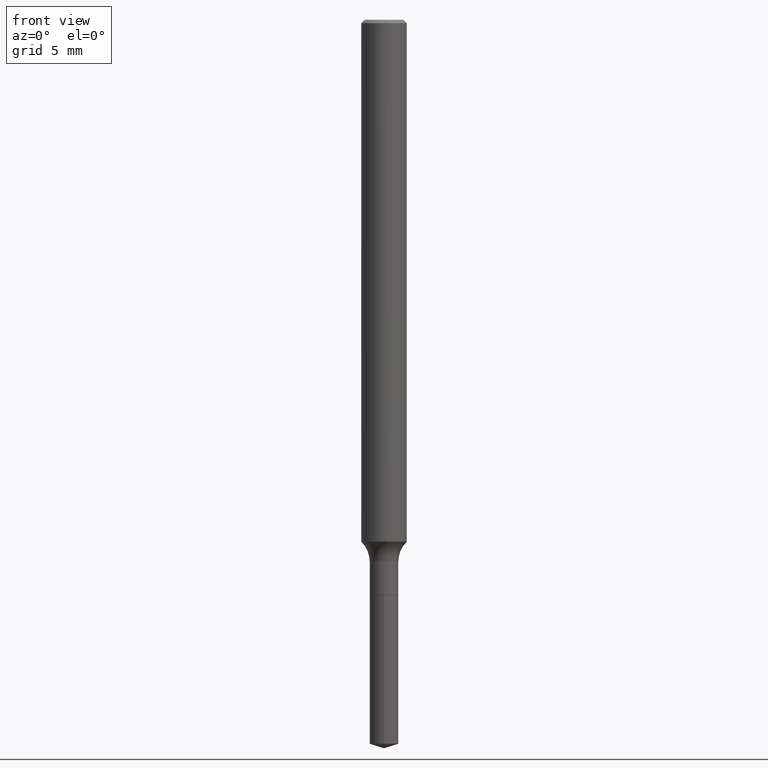
[diagram: clean part render]
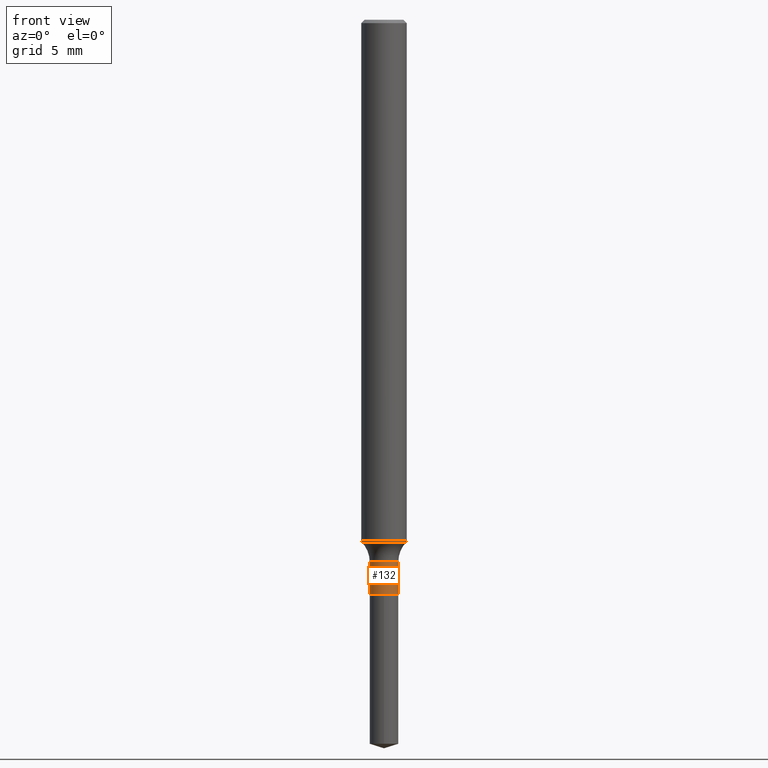
[diagram: same view with one face highlighted and labeled with its STEP entity id]
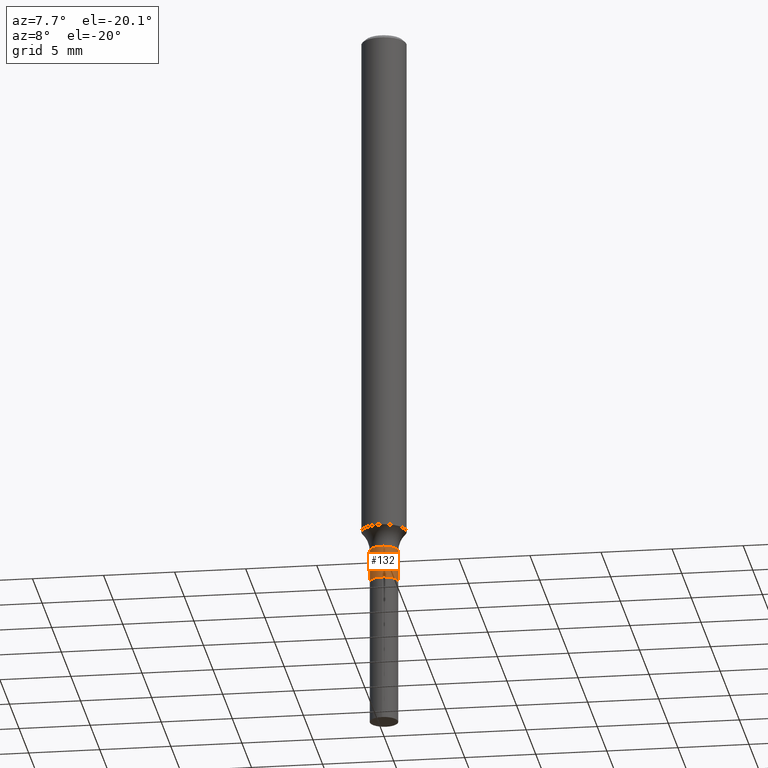
[diagram: same view with one face highlighted and labeled with its STEP entity id]
A machine part, front view. The second image highlights one B-rep face of the part: STEP entity #132.
A second angle (auxiliary view) of the same face is appended — the face is thin or edge-on in the first view.
In plain terms, the highlighted cylindrical surface (edge-blend (fillet) strip) has radius 0.9969 mm, axis along (-0, 0, 1).
Its self-contained STEP definition (entity closure, byte-faithful):
#16 = CARTESIAN_POINT ( 'NONE',  ( -0.03924999999999997935, -5.073902016794587862E-15, -1.488199999999999967 ) ) ;
#27 = DIRECTION ( 'NONE',  ( 1.000000000000000000, -6.982962677686279332E-15, 0.000000000000000000 ) ) ;
#76 = VECTOR ( 'NONE', #283, 39.37007874015748143 ) ;
#79 = EDGE_CURVE ( 'NONE', #83, #379, #329, .T. ) ;
#83 = VERTEX_POINT ( 'NONE', #244 ) ;
#119 = ORIENTED_EDGE ( 'NONE', *, *, #186, .F. ) ;
#132 = ADVANCED_FACE ( 'NONE', ( #461 ), #156, .T. ) ;
#146 = VERTEX_POINT ( 'NONE', #16 ) ;
#151 = AXIS2_PLACEMENT_3D ( 'NONE', #238, #435, #27 ) ;
#156 = CYLINDRICAL_SURFACE ( 'NONE', #476, 0.03924999999999997935 ) ;
#161 = CARTESIAN_POINT ( 'NONE',  ( 0.000000000000000000, 0.000000000000000000, 0.000000000000000000 ) ) ;
#175 = CIRCLE ( 'NONE', #369, 0.03924999999999997935 ) ;
#186 = EDGE_CURVE ( 'NONE', #196, #146, #469, .T. ) ;
#188 = CARTESIAN_POINT ( 'NONE',  ( -0.03924999999999998629, -5.073902016794587862E-15, -1.578000000000000291 ) ) ;
#189 = CIRCLE ( 'NONE', #151, 0.03924999999999998629 ) ;
#192 = VECTOR ( 'NONE', #269, 39.37007874015748143 ) ;
#196 = VERTEX_POINT ( 'NONE', #188 ) ;
#203 = EDGE_CURVE ( 'NONE', #146, #379, #175, .T. ) ;
#218 = EDGE_LOOP ( 'NONE', ( #119, #429, #433, #336 ) ) ;
#234 = CARTESIAN_POINT ( 'NONE',  ( -0.03924999999999997935, 2.788880237858391762E-16, -1.930682022925049823E-30 ) ) ;
#238 = CARTESIAN_POINT ( 'NONE',  ( 3.858949776160146052E-29, -5.509557552694484566E-15, -1.578000000000000291 ) ) ;
#243 = CARTESIAN_POINT ( 'NONE',  ( 0.03924999999999997935, -5.470103813565554641E-15, -1.488199999999999967 ) ) ;
#244 = CARTESIAN_POINT ( 'NONE',  ( 0.03924999999999998629, -5.783638837793670882E-15, -1.578000000000000291 ) ) ;
#253 = CARTESIAN_POINT ( 'NONE',  ( 0.03924999999999997935, -2.740812850991858225E-16, 1.913899384499903832E-30 ) ) ;
#269 = DIRECTION ( 'NONE',  ( -2.445468806185136877E-29, 3.491481338843145188E-15, 1.000000000000000000 ) ) ;
#279 = DIRECTION ( 'NONE',  ( -2.445468806185136597E-29, 3.491481338843145583E-15, 1.000000000000000000 ) ) ;
#283 = DIRECTION ( 'NONE',  ( -2.445468806185136877E-29, 3.491481338843145188E-15, 1.000000000000000000 ) ) ;
#303 = CARTESIAN_POINT ( 'NONE',  ( 3.639346677364720273E-29, -5.196022528466369115E-15, -1.488199999999999967 ) ) ;
#306 = DIRECTION ( 'NONE',  ( -2.445468806185136597E-29, 3.491481338843145583E-15, 1.000000000000000000 ) ) ;
#329 = LINE ( 'NONE', #253, #76 ) ;
#336 = ORIENTED_EDGE ( 'NONE', *, *, #203, .F. ) ;
#346 = DIRECTION ( 'NONE',  ( 1.000000000000000000, -6.982962677686266711E-15, 4.876176775795935793E-29 ) ) ;
#366 = EDGE_CURVE ( 'NONE', #196, #83, #189, .T. ) ;
#369 = AXIS2_PLACEMENT_3D ( 'NONE', #303, #279, #378 ) ;
#378 = DIRECTION ( 'NONE',  ( 1.000000000000000000, -6.982962677686256455E-15, 0.000000000000000000 ) ) ;
#379 = VERTEX_POINT ( 'NONE', #243 ) ;
#429 = ORIENTED_EDGE ( 'NONE', *, *, #366, .T. ) ;
#433 = ORIENTED_EDGE ( 'NONE', *, *, #79, .T. ) ;
#435 = DIRECTION ( 'NONE',  ( -2.445468806185136597E-29, 3.491481338843145583E-15, 1.000000000000000000 ) ) ;
#461 = FACE_OUTER_BOUND ( 'NONE', #218, .T. ) ;
#469 = LINE ( 'NONE', #234, #192 ) ;
#476 = AXIS2_PLACEMENT_3D ( 'NONE', #161, #306, #346 ) ;